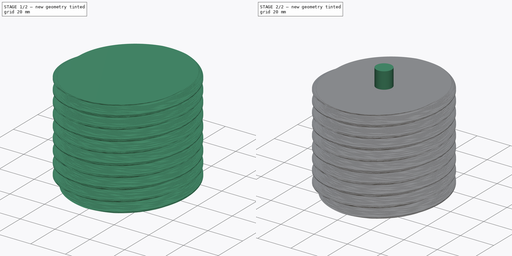
[diagram: build sequence overview — one tinted view per stage of 2, left to right]
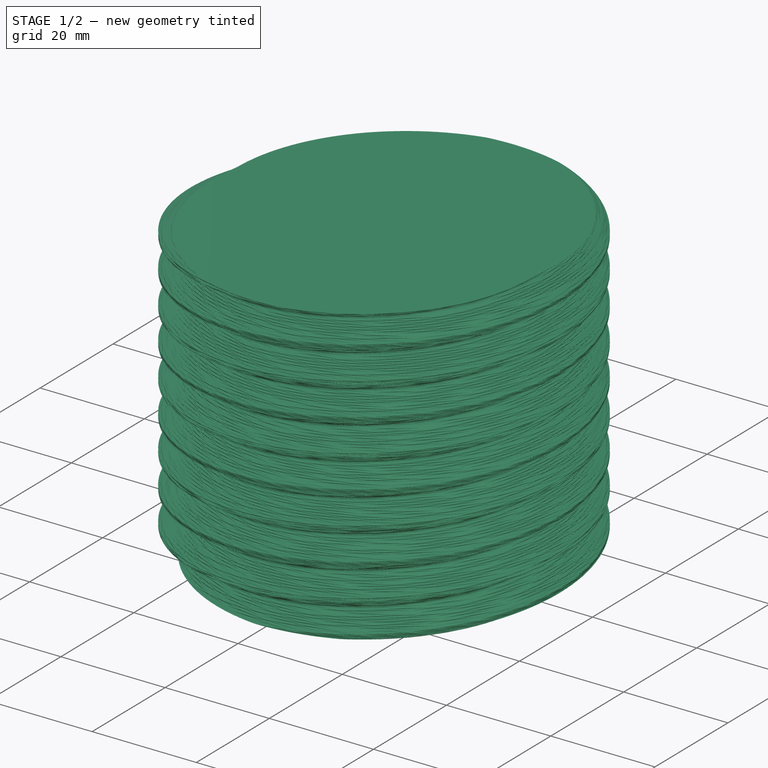
[diagram: stage 1 of 2 — iso view after this stage's code; geometry added in this stage tinted green]
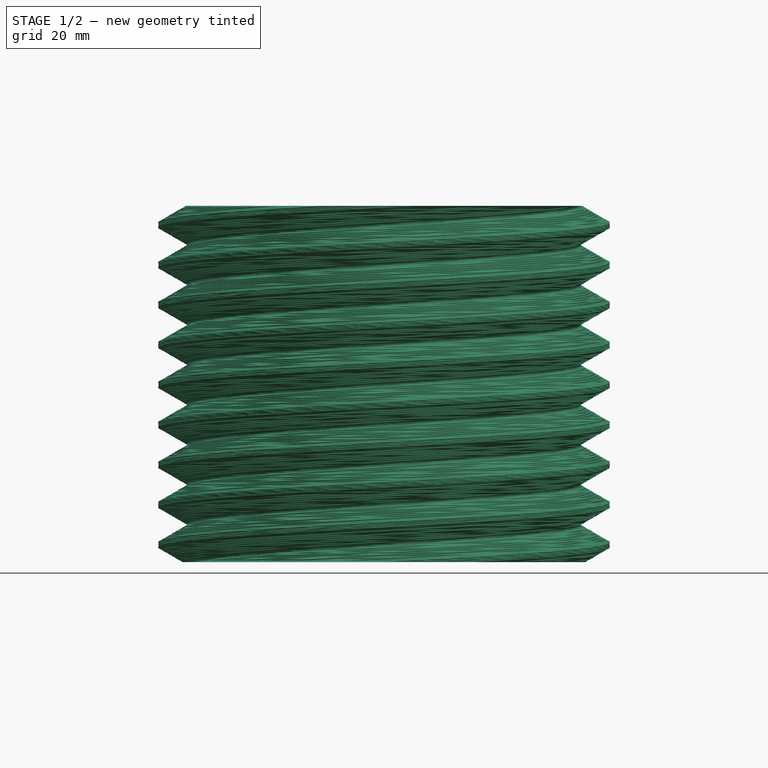
[diagram: stage 1 of 2 — front view after this stage's code; geometry added in this stage tinted green]
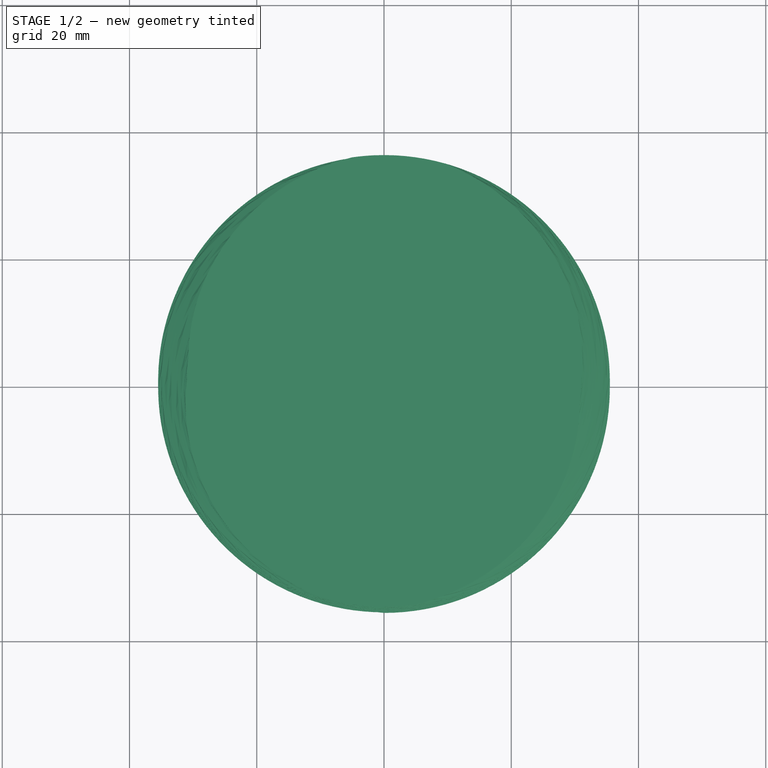
[diagram: stage 1 of 2 — top view after this stage's code; geometry added in this stage tinted green]
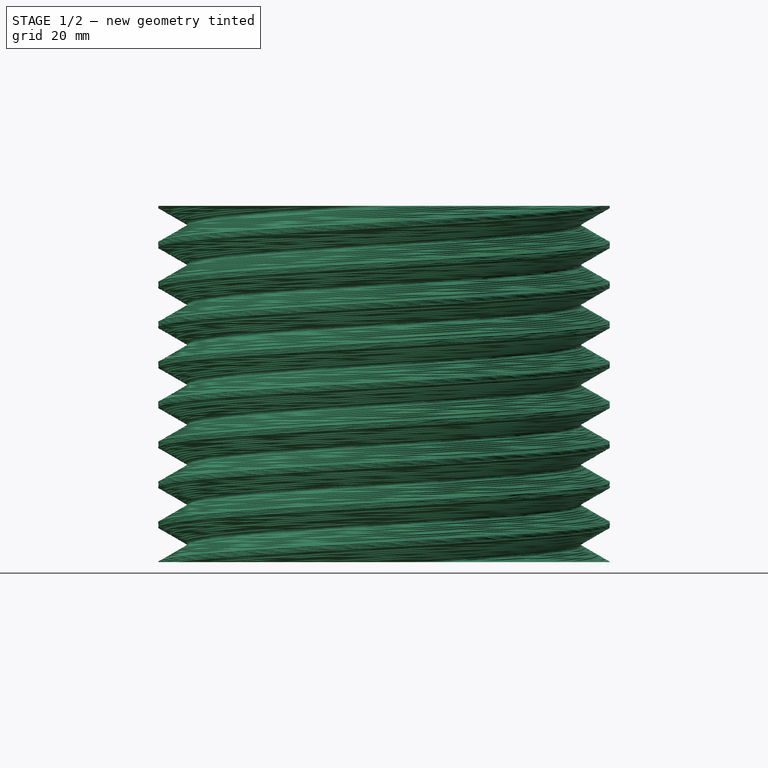
[diagram: stage 1 of 2 — right view after this stage's code; geometry added in this stage tinted green]
FCSTD DOCUMENT  (FreeCAD 0.20R29410 (Git))
Label: worm
License: All rights reserved
LicenseURL: http://en.wikipedia.org/wiki/All_rights_reserved
objects: Sketcher::SketchObject×2, Part::FeaturePython×1, PartDesign::FeatureBase×1, PartDesign::Pocket×1, PartDesign::Pad×1, PartDesign::Body×1
note: 9 computed .brp shape members not serialized (recipe doc carries the construction recipe); baked Part::Feature solids carry a one-line shape summary decoded from their .brp

FEATURE [Part::FeaturePython] WormGear  # WARN: FeaturePython — macro-defined, semantics opaque (R4)
  AttacherType = Attacher::AttachEngine3D
  beta = 3.41659
  clearance = 0.25
  diameter = 67
  head = 0
  height = 56
  module = 2
  pressure_angle = 30
  reverse_pitch = false
  teeth = 2
  version = 0.0.4
FEATURE [Sketcher::SketchObject] Sketch
  FullyConstrained = true
  MapMode = 5
  Support = -> [XY_Plane]
  sketch-geometry (5):
    g0: ArcOfCircle CenterX=0 CenterY=0 CenterZ=0 NormalX=0 NormalY=0 NormalZ=1 AngleXU=0 Radius=4.1 StartAngle=1.84242 EndAngle=7.58236
    g1: LineSegment StartX=-1.1 StartY=3.94968 StartZ=0 EndX=-1.1 EndY=5.2 EndZ=0
    g2: LineSegment StartX=-1.1 StartY=5.2 StartZ=0 EndX=1.1 EndY=5.2 EndZ=0
    g3: LineSegment StartX=1.1 StartY=5.2 StartZ=0 EndX=1.1 EndY=3.94968 EndZ=0
    g4: GeomPoint X=0 Y=4.1 Z=0
  constraints (14):
    c: Coincident(g0,g-1)
    c: Diameter(g0) = 8.2
    c: Coincident(g1,g2)
    c: Coincident(g2,g3)
    c: Horizontal(g2)
    c: Vertical(g1)
    c: Vertical(g3)
    c: PointOnObject(g4,g0)
    c: PointOnObject(g4,g-2)
    c: DistanceX(g2,g2) = 2.2
    c: Coincident(g0,g3)
    c: Coincident(g0,g1)
    c: DistanceY(g4,g1) = 1.1
    c: Horizontal(g0,g0)
FEATURE [PartDesign::FeatureBase] BaseFeature
  BaseFeature = -> WormGear
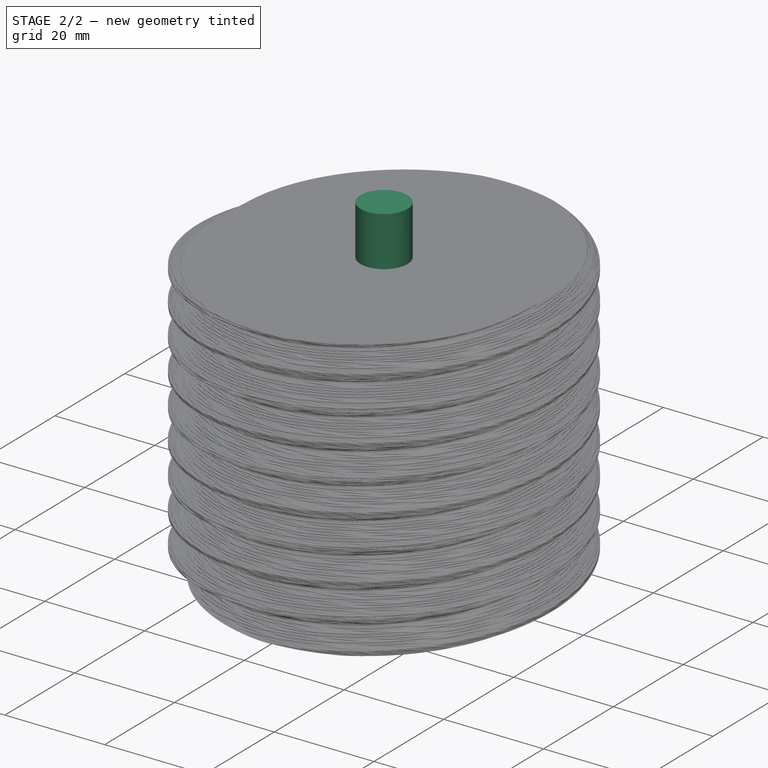
[diagram: stage 2 of 2 — iso view after this stage's code; geometry added in this stage tinted green]
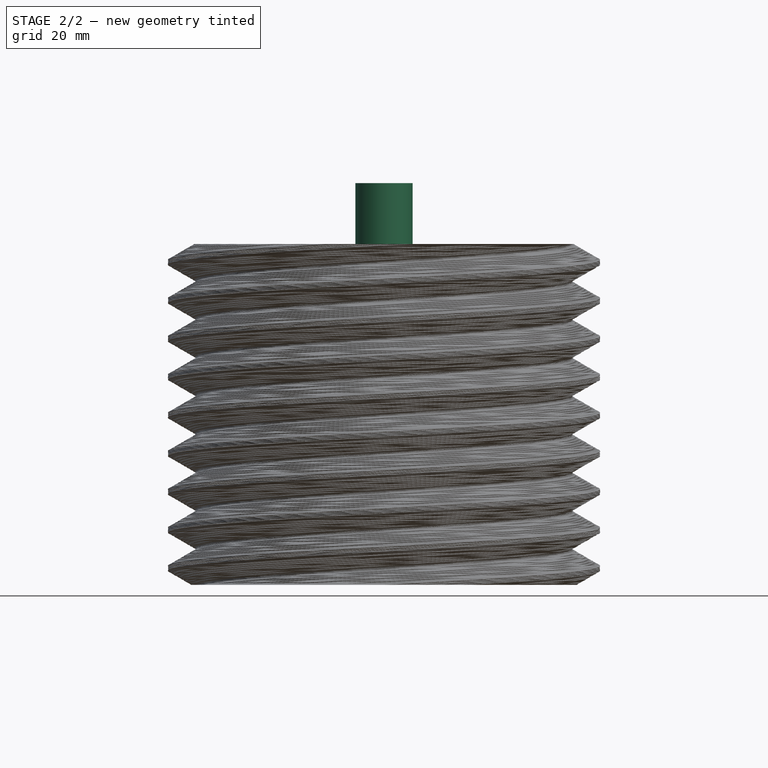
[diagram: stage 2 of 2 — front view after this stage's code; geometry added in this stage tinted green]
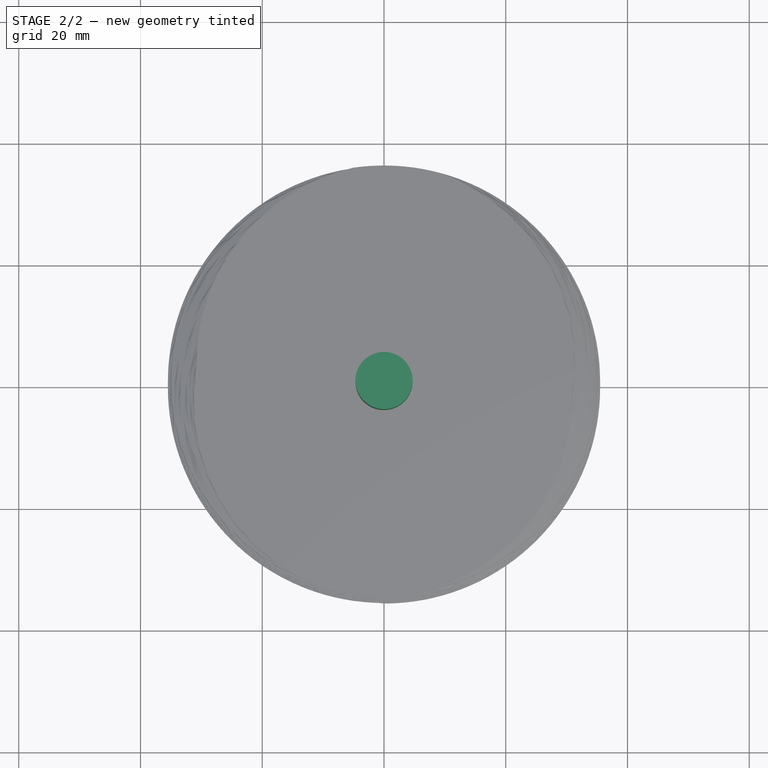
[diagram: stage 2 of 2 — top view after this stage's code; geometry added in this stage tinted green]
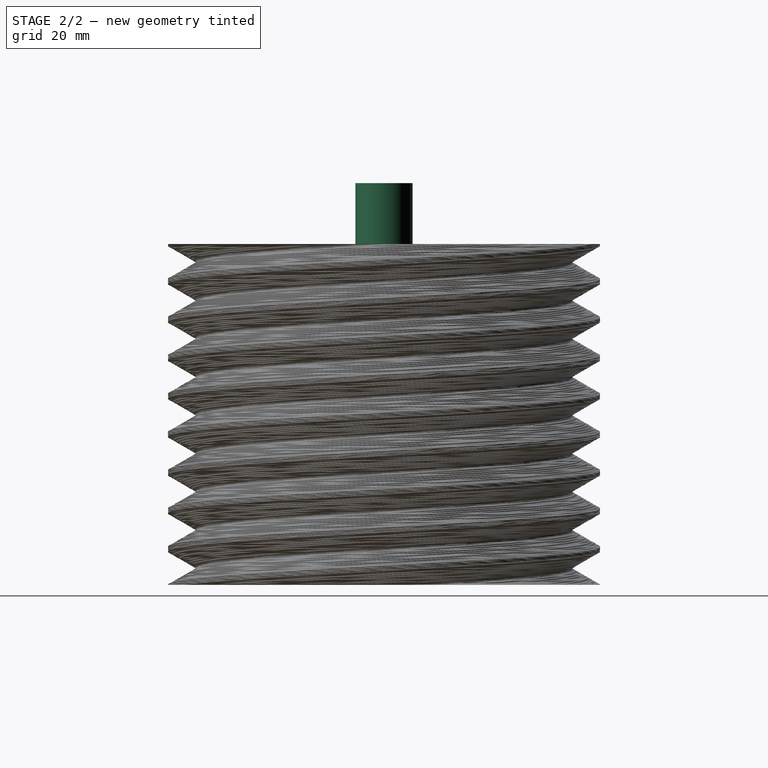
[diagram: stage 2 of 2 — right view after this stage's code; geometry added in this stage tinted green]
FEATURE [PartDesign::Pocket] Pocket
  BaseFeature = -> BaseFeature
  Direction = (0,0,-1)
  Length = 45
  Length2 = 5
  Profile = -> Sketch
  ReferenceAxis = -> Sketch [N_Axis]
  Reversed = true
  Type = 0
FEATURE [Sketcher::SketchObject] Sketch001
  FullyConstrained = true
  MapMode = 5
  Placement = pos=(0.0012035,-0.000338703,55.9998) rot=(0.270908,0.962605,3e-06;2.2e-05rad)
  Support = -> [Pocket]
  sketch-geometry (1):
    g0: Circle CenterX=0 CenterY=0 CenterZ=0 NormalX=0 NormalY=0 NormalZ=1 AngleXU=0 Radius=4.7
  constraints (2):
    c: Coincident(g0,g-1)
    c: Diameter(g0) = 9.4
FEATURE [PartDesign::Pad] Pad
  BaseFeature = -> Pocket
  Direction = (2.14911e-05,-6.04828e-06,1)
  Length = 10
  Length2 = 10
  Profile = -> Sketch001
  ReferenceAxis = -> Sketch001 [N_Axis]
  Type = 0
FEATURE [PartDesign::Body] Body
  BaseFeature = -> WormGear
  Group = -> [BaseFeature,Sketch,Pocket,Sketch001,Pad]
  Origin = -> Origin
  Tip = -> Pad
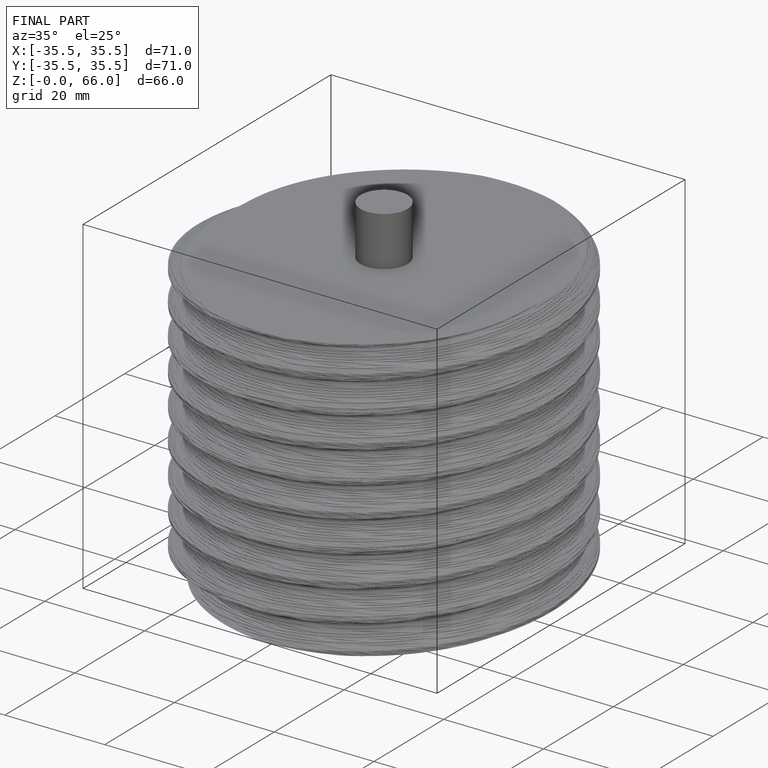
[diagram: finished part — iso view with bounding-box wireframe]
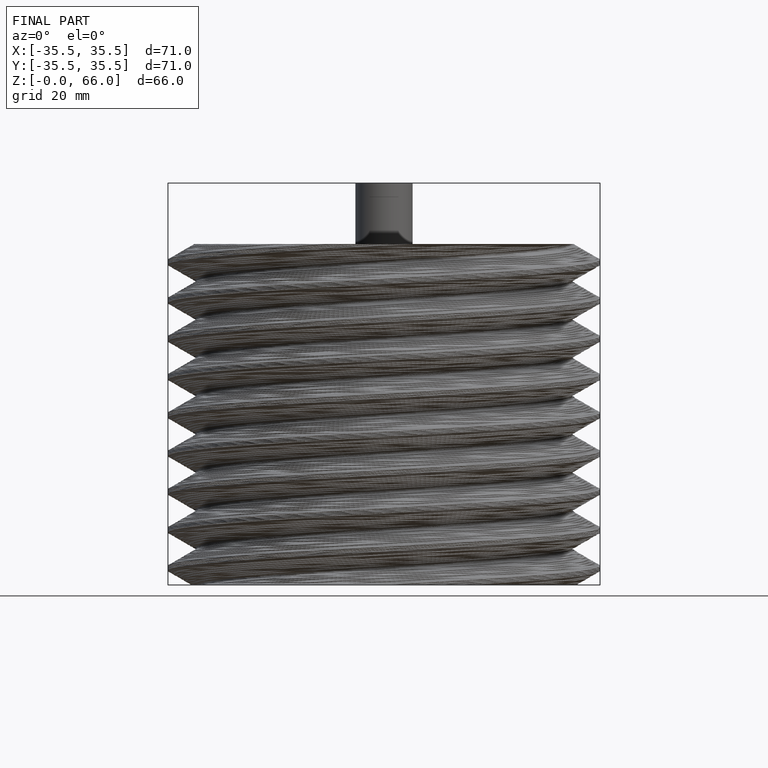
[diagram: finished part — front view with bounding-box wireframe]
